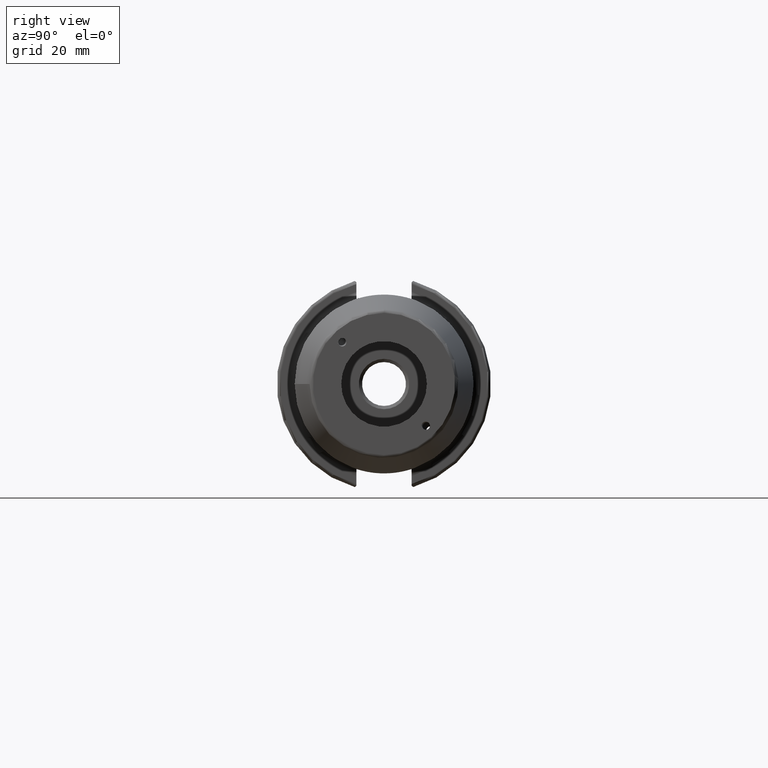
[diagram: clean part render]
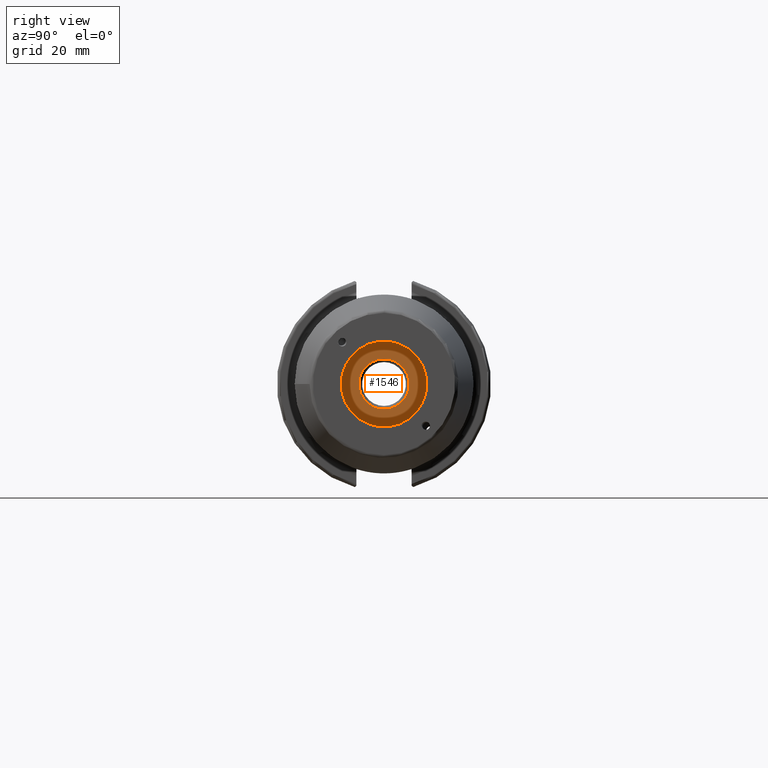
[diagram: same view with one face highlighted and labeled with its STEP entity id]
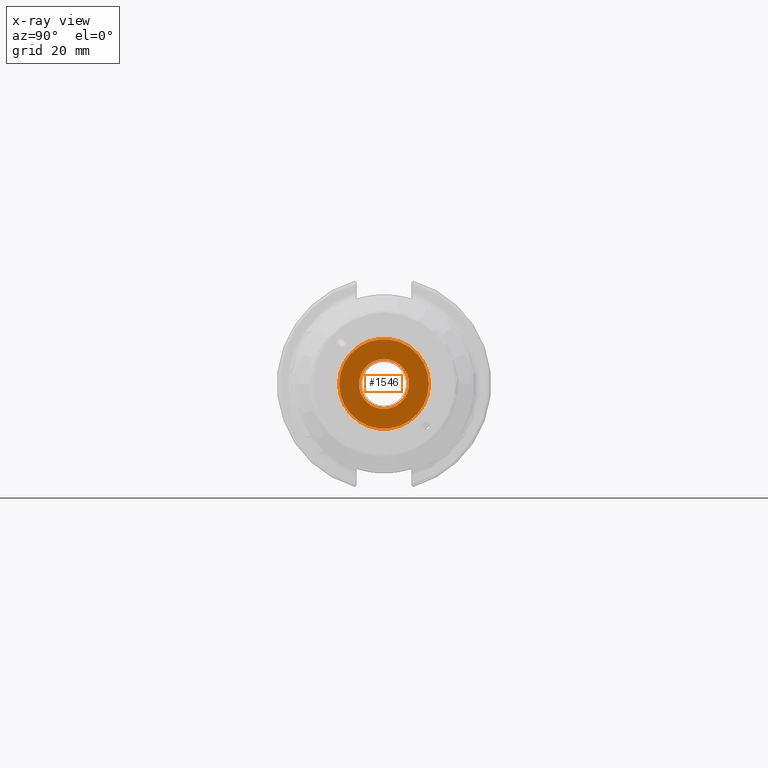
[diagram: x-ray of the same camera — body ghosted, the highlighted face saturated]
A machine part, right view. The second image highlights one B-rep face of the part: STEP entity #1546.
The next image is the same camera in x-ray: the body ghosted, the highlighted face saturated — about 13% of this face is hidden behind the body in this view.
In plain terms, the highlighted planar face has unit normal (1, 0, 0).
Its self-contained STEP definition (entity closure, byte-faithful):
#37=FACE_BOUND('',#242,.T.);
#50=PLANE('',#1685);
#144=FACE_OUTER_BOUND('',#241,.T.);
#241=EDGE_LOOP('',(#1098));
#242=EDGE_LOOP('',(#1099));
#343=CIRCLE('',#1676,7.458734);
#347=CIRCLE('',#1684,13.3);
#646=VERTEX_POINT('',#2458);
#654=VERTEX_POINT('',#2549);
#814=EDGE_CURVE('',#646,#646,#343,.T.);
#826=EDGE_CURVE('',#654,#654,#347,.T.);
#1098=ORIENTED_EDGE('',*,*,#826,.T.);
#1099=ORIENTED_EDGE('',*,*,#814,.T.);
#1546=ADVANCED_FACE('',(#144,#37),#50,.T.);
#1676=AXIS2_PLACEMENT_3D('',#2459,#1912,#1913);
#1684=AXIS2_PLACEMENT_3D('',#2551,#1932,#1933);
#1685=AXIS2_PLACEMENT_3D('',#2552,#1934,#1935);
#1912=DIRECTION('center_axis',(-1.,0.,0.));
#1913=DIRECTION('ref_axis',(0.,0.,-1.));
#1932=DIRECTION('center_axis',(1.,0.,0.));
#1933=DIRECTION('ref_axis',(0.,0.,-1.));
#1934=DIRECTION('center_axis',(1.,0.,0.));
#1935=DIRECTION('ref_axis',(0.,0.,-1.));
#2458=CARTESIAN_POINT('',(70.,-9.13431471879154E-16,7.458734));
#2459=CARTESIAN_POINT('Origin',(70.,0.,0.));
#2549=CARTESIAN_POINT('',(70.,-13.3,-1.62878024286598E-15));
#2551=CARTESIAN_POINT('Origin',(70.,0.,0.));
#2552=CARTESIAN_POINT('Origin',(70.,-2.22044604925031E-15,0.));